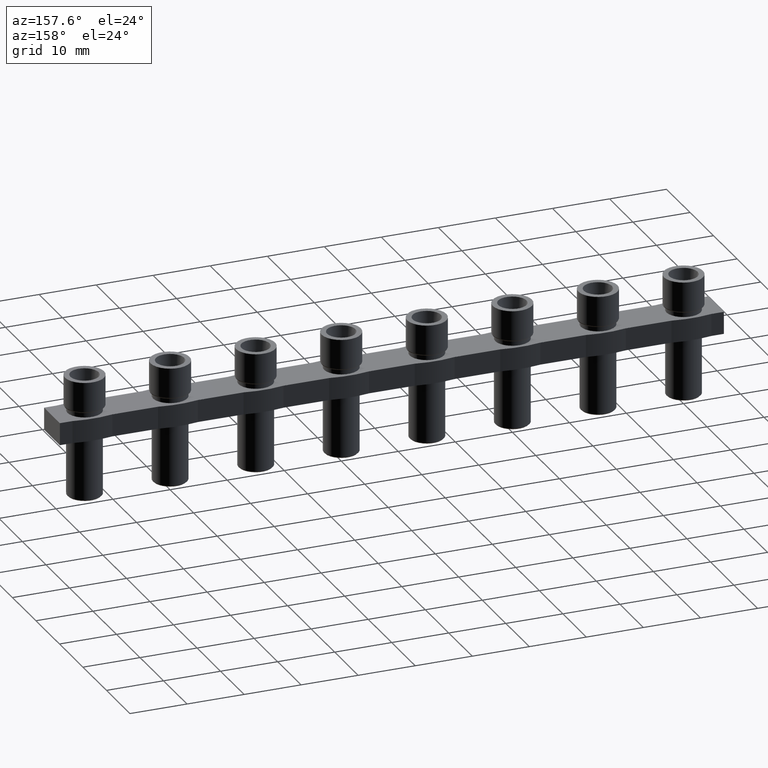
[diagram: clean part render]
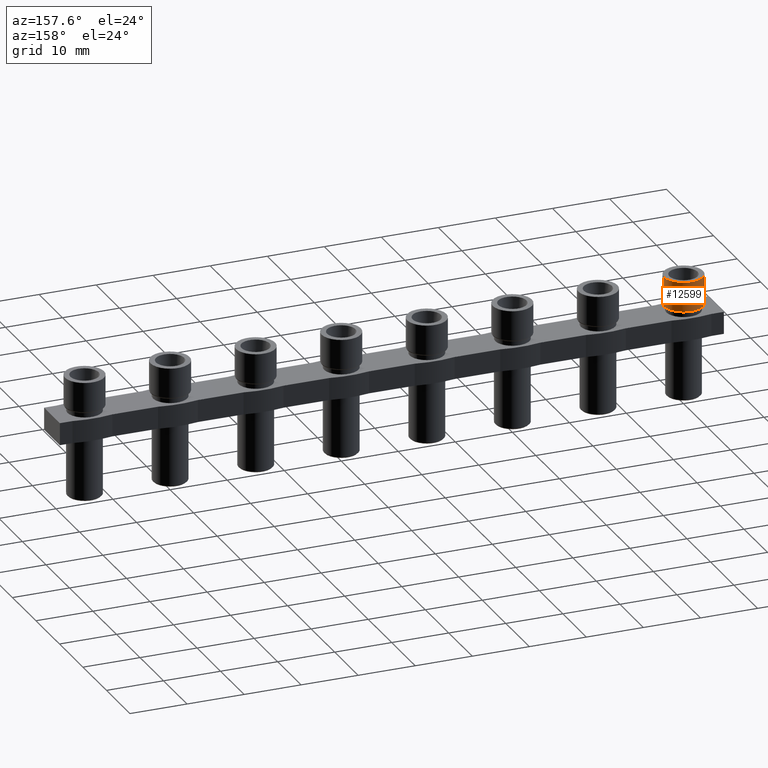
[diagram: same view with one face highlighted and labeled with its STEP entity id]
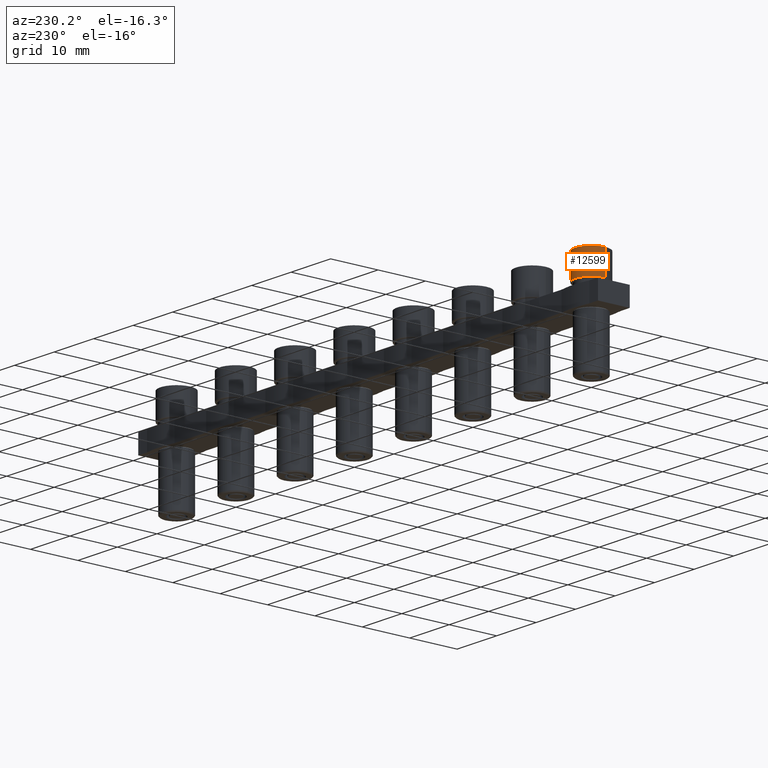
[diagram: same view with one face highlighted and labeled with its STEP entity id]
A machine part, auxiliary view. The second image highlights one B-rep face of the part: STEP entity #12599.
A second angle (auxiliary view) of the same face is appended — the face is thin or edge-on in the first view.
In plain terms, the highlighted cylindrical surface (edge-blend (fillet) strip) has radius 3.425 mm, axis along (-0, -0, -1).
Its self-contained STEP definition (entity closure, byte-faithful):
#395 = EDGE_CURVE ( 'NONE', #2094, #2531, #14336, .T. ) ;
#423 = EDGE_CURVE ( 'NONE', #2095, #2514, #14404, .T. ) ;
#426 = EDGE_CURVE ( 'NONE', #2095, #2094, #10344, .T. ) ;
#455 = EDGE_CURVE ( 'NONE', #2514, #2531, #10377, .T. ) ;
#2094 = VERTEX_POINT ( 'NONE', #8581 ) ;
#2095 = VERTEX_POINT ( 'NONE', #8572 ) ;
#2514 = VERTEX_POINT ( 'NONE', #9018 ) ;
#2531 = VERTEX_POINT ( 'NONE', #9003 ) ;
#2727 = EDGE_LOOP ( 'NONE', ( #4669, #4744, #4693, #4773 ) ) ;
#4669 = ORIENTED_EDGE ( 'NONE', *, *, #426, .T. ) ;
#4693 = ORIENTED_EDGE ( 'NONE', *, *, #455, .F. ) ;
#4744 = ORIENTED_EDGE ( 'NONE', *, *, #395, .T. ) ;
#4773 = ORIENTED_EDGE ( 'NONE', *, *, #423, .F. ) ;
#7379 = CARTESIAN_POINT ( 'NONE',  ( 0.0000000000000000000, 0.0000000000000000000, 5.400000000000000400 ) ) ;
#7381 = CYLINDRICAL_SURFACE ( 'NONE', #11793, 3.424999999999998000 ) ;
#7382 = DIRECTION ( 'NONE',  ( -1.000000000000000000, 0.0000000000000000000, 0.0000000000000000000 ) ) ;
#7390 = FACE_OUTER_BOUND ( 'NONE', #2727, .T. ) ;
#7406 = DIRECTION ( 'NONE',  ( -0.0000000000000000000, -0.0000000000000000000, -1.000000000000000000 ) ) ;
#8572 = CARTESIAN_POINT ( 'NONE',  ( -3.424999999999998000, 0.0000000000000000000, 5.400000000000000400 ) ) ;
#8581 = CARTESIAN_POINT ( 'NONE',  ( 3.424999999999998000, 4.194415287079682000E-016, 5.400000000000000400 ) ) ;
#9003 = CARTESIAN_POINT ( 'NONE',  ( 3.424999999999998000, 4.194415287079682000E-016, 0.1999999999999996500 ) ) ;
#9018 = CARTESIAN_POINT ( 'NONE',  ( -3.424999999999998000, 0.0000000000000000000, 0.1999999999999996500 ) ) ;
#10307 = VECTOR ( 'NONE', #14312, 1000.000000000000000 ) ;
#10325 = VECTOR ( 'NONE', #14425, 1000.000000000000000 ) ;
#10337 = AXIS2_PLACEMENT_3D ( 'NONE', #14460, #14447, #14440 ) ;
#10344 = CIRCLE ( 'NONE', #10337, 3.424999999999998000 ) ;
#10377 = CIRCLE ( 'NONE', #10392, 3.424999999999998000 ) ;
#10392 = AXIS2_PLACEMENT_3D ( 'NONE', #14543, #14531, #14538 ) ;
#11793 = AXIS2_PLACEMENT_3D ( 'NONE', #7379, #7406, #7382 ) ;
#12599 = ADVANCED_FACE ( 'NONE', ( #7390 ), #7381, .T. ) ;
#14312 = DIRECTION ( 'NONE',  ( -0.0000000000000000000, -0.0000000000000000000, -1.000000000000000000 ) ) ;
#14329 = CARTESIAN_POINT ( 'NONE',  ( 3.424999999999998000, 4.194415287079682000E-016, 5.400000000000000400 ) ) ;
#14336 = LINE ( 'NONE', #14329, #10307 ) ;
#14404 = LINE ( 'NONE', #14406, #10325 ) ;
#14406 = CARTESIAN_POINT ( 'NONE',  ( -3.424999999999998000, 0.0000000000000000000, 5.400000000000000400 ) ) ;
#14425 = DIRECTION ( 'NONE',  ( -0.0000000000000000000, -0.0000000000000000000, -1.000000000000000000 ) ) ;
#14440 = DIRECTION ( 'NONE',  ( -1.000000000000000000, 0.0000000000000000000, 0.0000000000000000000 ) ) ;
#14447 = DIRECTION ( 'NONE',  ( -0.0000000000000000000, -0.0000000000000000000, -1.000000000000000000 ) ) ;
#14460 = CARTESIAN_POINT ( 'NONE',  ( 0.0000000000000000000, 0.0000000000000000000, 5.400000000000000400 ) ) ;
#14531 = DIRECTION ( 'NONE',  ( -0.0000000000000000000, -0.0000000000000000000, -1.000000000000000000 ) ) ;
#14538 = DIRECTION ( 'NONE',  ( 1.000000000000000000, 0.0000000000000000000, 0.0000000000000000000 ) ) ;
#14543 = CARTESIAN_POINT ( 'NONE',  ( 0.0000000000000000000, 2.097207643539841000E-016, 0.1999999999999996500 ) ) ;